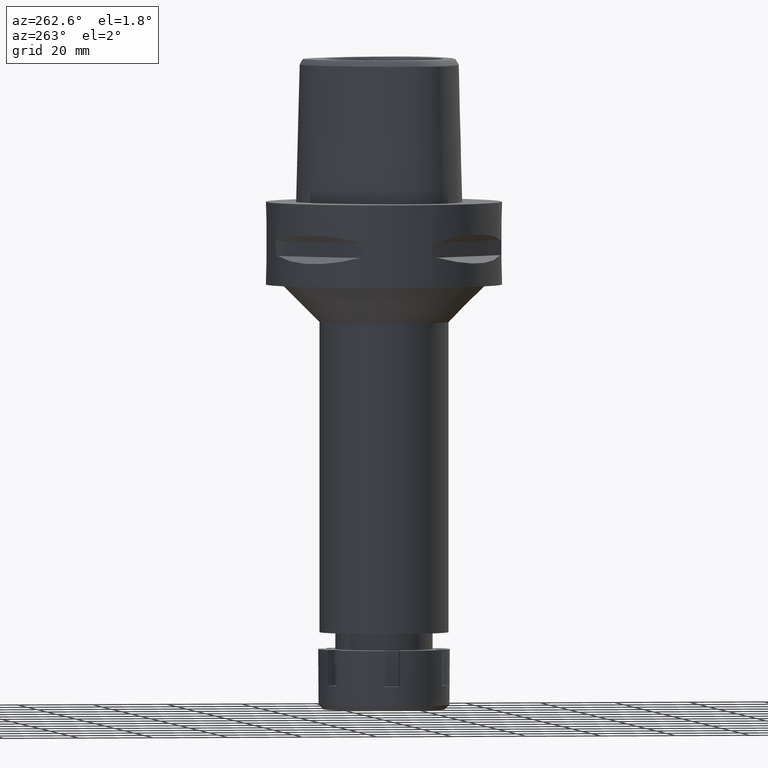
[diagram: clean part render]
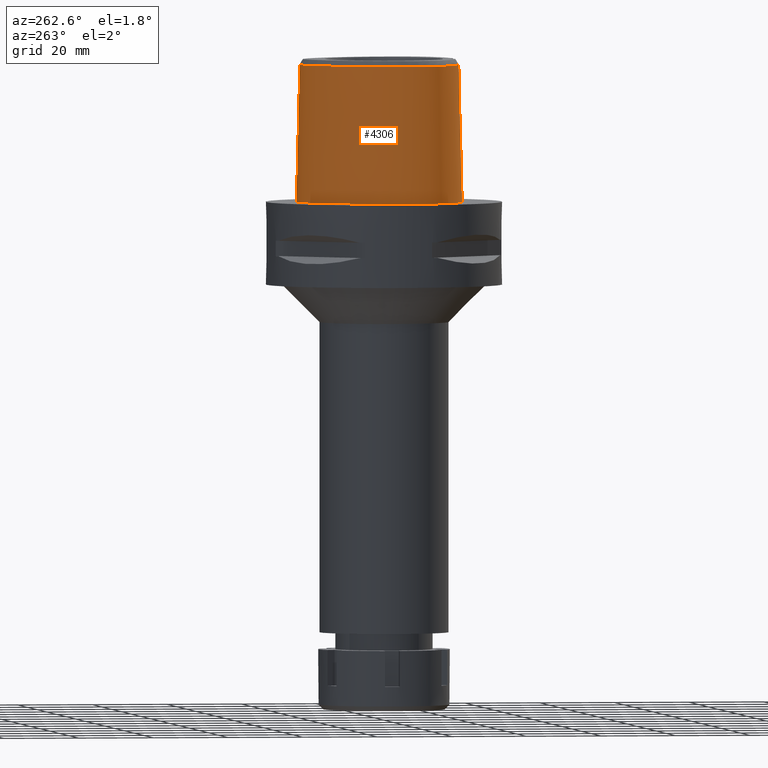
[diagram: same view with one face highlighted and labeled with its STEP entity id]
A machine part, auxiliary view. The second image highlights one B-rep face of the part: STEP entity #4306.
In plain terms, the highlighted face is a freeform B-spline surface patch.
Its self-contained STEP definition (entity closure, byte-faithful):
#16 = CARTESIAN_POINT ( 'NONE',  ( -13.69241955236999964, 15.03666371521000045, 37.25233127712999703 ) ) ;
#30 = CARTESIAN_POINT ( 'NONE',  ( -4.467522189395897847, -19.48130287050651432, 36.52186244848001451 ) ) ;
#43 = CARTESIAN_POINT ( 'NONE',  ( -21.36961487194999876, -0.3886498148208000769, 24.59140822868999976 ) ) ;
#69 = EDGE_CURVE ( 'NONE', #4087, #5473, #4562, .T. ) ;
#80 = CARTESIAN_POINT ( 'NONE',  ( -1.853278683527000092, -20.08023909468999690, 24.59140822868999976 ) ) ;
#106 = CARTESIAN_POINT ( 'NONE',  ( 0.6657744275854999838, -19.73734233401000182, 37.25233127712999703 ) ) ;
#115 = EDGE_CURVE ( 'NONE', #5072, #4087, #3562, .T. ) ;
#130 = CARTESIAN_POINT ( 'NONE',  ( -14.52531259835000021, -16.95413742138000046, 11.93048518026000160 ) ) ;
#151 = B_SPLINE_CURVE_WITH_KNOTS ( 'NONE', 3,
 ( #5113, #30, #927, #3508, #956, #899, #5225, #1735, #3537, #380, #865, #3905, #3120, #4288, #2697, #1278, #466, #3090, #2239, #1302, #4728, #2613, #1784 ),
 .UNSPECIFIED., .F., .F.,
 ( 4, 1, 1, 1, 1, 1, 1, 1, 1, 1, 1, 1, 1, 1, 1, 1, 1, 1, 1, 1, 4 ),
 ( 0.0000000000000000000, 0.03580973941722431081, 0.1234633994701847537, 0.1672902294965072090, 0.2111170595230400793, 0.2549438895495728663, 0.2768573045626815388, 0.2987707195758954049, 0.3206841345892144091, 0.3425975496024281641, 0.3864243796288558408, 0.4302512096552835175, 0.4740780396817111941, 0.5617316997346716301, 0.6493853597876321215, 0.7370390198404874749, 0.8246926798933427172, 0.8685195099198755875, 0.9123463399463137558, 0.9561731699727624711, 1.000000000000000000 ),
 .UNSPECIFIED. ) ;
#158 = CARTESIAN_POINT ( 'NONE',  ( -3.925407708632546289, -20.04099055260235573, 16.53138977182224423 ) ) ;
#159 = CARTESIAN_POINT ( 'NONE',  ( -6.232237555679000174, -19.68961163750000054, 24.59140822868999976 ) ) ;
#164 = CARTESIAN_POINT ( 'NONE',  ( -3.736722311398999796, -19.67781602443999844, 31.80000000000000071 ) ) ;
#165 = B_SPLINE_CURVE_WITH_KNOTS ( 'NONE', 3,
 ( #3456, #5556, #3827, #3394 ),
 .UNSPECIFIED., .F., .F.,
 ( 4, 4 ),
 ( 0.0000000000000000000, 1.000000000000000000 ),
 .UNSPECIFIED. ) ;
#180 = CARTESIAN_POINT ( 'NONE',  ( -1.222079501492472575, -20.16967619644332288, 19.36182732690642183 ) ) ;
#188 = CARTESIAN_POINT ( 'NONE',  ( -11.13012653171999844, -18.61140109487000061, 11.93048518026000160 ) ) ;
#273 = CARTESIAN_POINT ( 'NONE',  ( -1.638635025842260395, -20.34200884320524594, 11.79610711465529072 ) ) ;
#302 = CARTESIAN_POINT ( 'NONE',  ( -3.408875187705125320, -20.17633333109277416, 13.31312751153840246 ) ) ;
#369 = CARTESIAN_POINT ( 'NONE',  ( -19.86834402391000154, 4.339653564286999554, 37.25233127712999703 ) ) ;
#370 = CARTESIAN_POINT ( 'NONE',  ( 4.563152410477000099E-11, 23.47499999999000053, 5.514107688971999147E-14 ) ) ;
#373 = DIRECTION ( 'NONE',  ( 1.720262925317959518E-12, 0.02499051290962944413, -0.9996876883629776112 ) ) ;
#380 = CARTESIAN_POINT ( 'NONE',  ( -20.09619618741428937, -10.23243843868634073, 36.52186244848001451 ) ) ;
#393 = CARTESIAN_POINT ( 'NONE',  ( 0.7042335231399000639, 23.15549812920000150, 11.93048518026000160 ) ) ;
#423 = CARTESIAN_POINT ( 'NONE',  ( -22.07548129579999951, -6.850245536158000803, -0.7304378681790000272 ) ) ;
#426 = CARTESIAN_POINT ( 'NONE',  ( -7.554098525921001644E-12, -20.67499999999999716, 5.806466418789999109E-14 ) ) ;
#443 = VECTOR ( 'NONE', #4189, 1000.000000000000114 ) ;
#453 = CARTESIAN_POINT ( 'NONE',  ( -21.13154856164000250, -6.714587030900999842, 37.25233127712999703 ) ) ;
#458 = EDGE_CURVE ( 'NONE', #1893, #5228, #4746, .T. ) ;
#466 = CARTESIAN_POINT ( 'NONE',  ( -13.70645028111648855, 15.04851272300692777, 36.52186244848001451 ) ) ;
#477 = CARTESIAN_POINT ( 'NONE',  ( -17.25769828266000161, 9.963736400456999931, 37.25233127712999703 ) ) ;
#489 = ORIENTED_EDGE ( 'NONE', *, *, #1690, .T. ) ;
#511 = CARTESIAN_POINT ( 'NONE',  ( -6.175998544751999830, -19.37631762907999899, 37.25233127712999703 ) ) ;
#540 = CARTESIAN_POINT ( 'NONE',  ( -4.048193638326268662, -20.04945813672259902, 15.62509932612175056 ) ) ;
#573 = CARTESIAN_POINT ( 'NONE',  ( -3.637738201363999835, -19.56971413236999879, 36.52186244848000030 ) ) ;
#593 = CARTESIAN_POINT ( 'NONE',  ( -18.58171406931000291, -14.18198046875999907, -0.7304378681790000272 ) ) ;
#616 = CARTESIAN_POINT ( 'NONE',  ( -2.852856104024934059, -20.09931387729061214, 18.37467926461877354 ) ) ;
#623 = CARTESIAN_POINT ( 'NONE',  ( -3.952964639633003596, -20.08622609015964144, 14.60890045225522726 ) ) ;
#624 = CARTESIAN_POINT ( 'NONE',  ( -16.77374378713999903, -15.44292467628999965, 11.93048518026000160 ) ) ;
#644 = CARTESIAN_POINT ( 'NONE',  ( -1.543048130380533900, -20.15993798682081817, 19.24453660913605546 ) ) ;
#652 = CARTESIAN_POINT ( 'NONE',  ( -2.421503357396272094, -20.28648737493427134, 12.24279215501540108 ) ) ;
#676 = CARTESIAN_POINT ( 'NONE',  ( -9.433993878921999819E-13, -20.38876923348000147, 11.44999999999999929 ) ) ;
#730 = CARTESIAN_POINT ( 'NONE',  ( -3.258446753586495603, -20.07522384658319581, 17.91983021284174882 ) ) ;
#739 = CARTESIAN_POINT ( 'NONE',  ( -3.698122373791105311, -20.13343971464007609, 13.84482020407636149 ) ) ;
#762 = CARTESIAN_POINT ( 'NONE',  ( -3.377353639916971240, -20.18061854612786021, 13.26476903757087200 ) ) ;
#771 = CARTESIAN_POINT ( 'NONE',  ( 4.563152410477000099E-11, 23.47499999999000053, 5.514107688971999147E-14 ) ) ;
#802 = CARTESIAN_POINT ( 'NONE',  ( -22.05732873771768965, -6.847636717958458519, 2.214068054329915158E-07 ) ) ;
#827 = CARTESIAN_POINT ( 'NONE',  ( -19.54161153936999895, -11.28235468087999926, 37.25233127712999703 ) ) ;
#852 = CARTESIAN_POINT ( 'NONE',  ( -7.420053100516999400, 21.05635738923000133, 11.93048518026000160 ) ) ;
#865 = CARTESIAN_POINT ( 'NONE',  ( -20.67704215115513122, -8.734985316449344950, 36.52186244848001451 ) ) ;
#883 = CARTESIAN_POINT ( 'NONE',  ( -20.46725037703999917, 4.555493625163999916, 11.93048518026000160 ) ) ;
#899 = CARTESIAN_POINT ( 'NONE',  ( -16.39211280192208520, -14.95758113319049976, 36.52186244848001451 ) ) ;
#912 = CARTESIAN_POINT ( 'NONE',  ( 0.4696382016542000049, 23.16972797940999840, 11.93048518026000160 ) ) ;
#914 = CARTESIAN_POINT ( 'NONE',  ( -14.67337964144484275, -17.21410155768000649, 2.214068054329915158E-07 ) ) ;
#927 = CARTESIAN_POINT ( 'NONE',  ( -7.300578999877464170, -19.07170748892091083, 36.52186244848001451 ) ) ;
#956 = CARTESIAN_POINT ( 'NONE',  ( -14.22011356156199646, -16.41829364186129325, 36.52186244848001451 ) ) ;
#970 = CARTESIAN_POINT ( 'NONE',  ( -4.001055636211794386, -20.04208398455365625, 16.14154222857164811 ) ) ;
#973 = CARTESIAN_POINT ( 'NONE',  ( -6.288476566606999718, -20.00290564591999853, 11.93048518026000160 ) ) ;
#987 = VERTEX_POINT ( 'NONE', #5398 ) ;
#1005 = CARTESIAN_POINT ( 'NONE',  ( -4.050018014422889223, -20.05167593067615073, 15.52805627100565999 ) ) ;
#1032 = CARTESIAN_POINT ( 'NONE',  ( -6.344715577535001039, -20.31619965434000008, -0.7304378681790000272 ) ) ;
#1048 = CARTESIAN_POINT ( 'NONE',  ( -2.187955111047391821, -20.13397228737175482, 18.90818030784005188 ) ) ;
#1056 = CARTESIAN_POINT ( 'NONE',  ( 0.4439216874838000648, -19.74161820898000386, 37.25233127712999703 ) ) ;
#1077 = CARTESIAN_POINT ( 'NONE',  ( -0.5036866637163958105, -20.18406862059044826, 19.52728785670091227 ) ) ;
#1086 = CARTESIAN_POINT ( 'NONE',  ( -3.755562140673117444, -20.12374194796142390, 13.98397501487588102 ) ) ;
#1106 = CARTESIAN_POINT ( 'NONE',  ( -2.236225399043196838, -20.13170464962383122, 18.87669531694533731 ) ) ;
#1114 = CARTESIAN_POINT ( 'NONE',  ( -0.5047993661891336803, -20.38876923348000147, 11.44999999999999929 ) ) ;
#1121 = FACE_OUTER_BOUND ( 'NONE', #2950, .T. ) ;
#1125 = CARTESIAN_POINT ( 'NONE',  ( -3.732557508995409723, -20.04859144260191073, 17.07180291399404837 ) ) ;
#1133 = CARTESIAN_POINT ( 'NONE',  ( -9.433993878921999819E-13, -20.38876923348000147, 11.44999999999999929 ) ) ;
#1165 = CARTESIAN_POINT ( 'NONE',  ( -1.025211814377291475, -20.17465818941732891, 19.42048404905546022 ) ) ;
#1195 = CARTESIAN_POINT ( 'NONE',  ( -3.704467467891559451, -20.04996865237281511, 17.13733399074462582 ) ) ;
#1201 = CARTESIAN_POINT ( 'NONE',  ( -2.086814383356662805, -20.31269213283750830, 12.02647857452362778 ) ) ;
#1239 = CARTESIAN_POINT ( 'NONE',  ( -20.74942740356179272, 4.657187498112564938, 2.214068054329915158E-07 ) ) ;
#1265 = CARTESIAN_POINT ( 'NONE',  ( -20.09084467927000262, -11.59945458324999912, 11.93048518026000160 ) ) ;
#1278 = CARTESIAN_POINT ( 'NONE',  ( -17.27359245833693535, 9.972912913898799303, 36.52186244848001451 ) ) ;
#1290 = CARTESIAN_POINT ( 'NONE',  ( -0.5657070177733999339, 22.56734879520000092, 37.25233127712999703 ) ) ;
#1302 = CARTESIAN_POINT ( 'NONE',  ( -4.757642277158504740, 21.67478330407244869, 36.52186244848001451 ) ) ;
#1313 = CARTESIAN_POINT ( 'NONE',  ( -4.987110641135000577, 22.24795273996000233, 11.93048518026000160 ) ) ;
#1343 = CARTESIAN_POINT ( 'NONE',  ( -22.26285557011000193, -4.100361500021000083, -0.7304378681790000272 ) ) ;
#1372 = CARTESIAN_POINT ( 'NONE',  ( -0.5821289161631999498, 22.88453074813000043, 24.59140822868999976 ) ) ;
#1375 = CARTESIAN_POINT ( 'NONE',  ( -2.113823672736048209, -20.67499999446930659, 2.214068054329915158E-07 ) ) ;
#1389 = VERTEX_POINT ( 'NONE', #5129 ) ;
#1433 = CARTESIAN_POINT ( 'NONE',  ( 0.4560943670709999842, -20.69106768951000319, -0.7304378681790000272 ) ) ;
#1460 = EDGE_CURVE ( 'NONE', #987, #5134, #2550, .T. ) ;
#1465 = CARTESIAN_POINT ( 'NONE',  ( -18.12052891589999959, -13.74516015592999985, 24.59140822868999976 ) ) ;
#1489 = CARTESIAN_POINT ( 'NONE',  ( -10.91263698685999906, -18.01320775540999719, 37.25233127712999703 ) ) ;
#1502 = ORIENTED_EDGE ( 'NONE', *, *, #115, .F. ) ;
#1544 = CARTESIAN_POINT ( 'NONE',  ( -3.438474044886168812, -20.17226853620313776, 13.35950353148015957 ) ) ;
#1566 = CARTESIAN_POINT ( 'NONE',  ( -3.474550157063373668, -20.06258684786147839, 17.58509941784221198 ) ) ;
#1592 = CARTESIAN_POINT ( 'NONE',  ( -1.435263460290661985, -20.16346600381252685, 19.28743623777367588 ) ) ;
#1598 = CARTESIAN_POINT ( 'NONE',  ( -3.830499027157552749, -20.11062698623148393, 14.18153512544096628 ) ) ;
#1627 = CARTESIAN_POINT ( 'NONE',  ( -7.554098525921001644E-12, -20.67499999999999716, 5.806466418789999109E-14 ) ) ;
#1629 = CARTESIAN_POINT ( 'NONE',  ( -2.904838724128950833, -20.23782704190354664, 12.67778573503163386 ) ) ;
#1667 = CARTESIAN_POINT ( 'NONE',  ( -10.74572890701135108, 19.17433593323718100, 2.214068054329915158E-07 ) ) ;
#1689 = CARTESIAN_POINT ( 'NONE',  ( -2.503210890370000108, 22.99958932038000015, 11.93048518026000160 ) ) ;
#1690 = EDGE_CURVE ( 'NONE', #1389, #5228, #2546, .T. ) ;
#1719 = CARTESIAN_POINT ( 'NONE',  ( -20.36546124922000089, -11.75800453443999949, -0.7304378681790000272 ) ) ;
#1735 = CARTESIAN_POINT ( 'NONE',  ( -18.90964971338520684, -12.28759719904428849, 36.52186244848001451 ) ) ;
#1746 = CARTESIAN_POINT ( 'NONE',  ( -20.94844326296999881, -10.61175397190999981, -0.7304378681790000272 ) ) ;
#1748 = CARTESIAN_POINT ( 'NONE',  ( -11.23259756537737530, -18.89324218226976626, 2.214068054329915158E-07 ) ) ;
#1771 = CARTESIAN_POINT ( 'NONE',  ( -0.6149727129425999195, 23.51889465401000123, -0.7304378681790000272 ) ) ;
#1784 = CARTESIAN_POINT ( 'NONE',  ( -1.721531712733000315E-11, 22.56201468012000078, 36.52186680743999858 ) ) ;
#1798 = ORIENTED_EDGE ( 'NONE', *, *, #1460, .T. ) ;
#1802 = CARTESIAN_POINT ( 'NONE',  ( -4.868968364406999427, 21.95285523312999842, 24.59140822868999976 ) ) ;
#1860 = CARTESIAN_POINT ( 'NONE',  ( -4.044848056823933113, -20.04744994059100094, 15.72117637690397274 ) ) ;
#1888 = CARTESIAN_POINT ( 'NONE',  ( -4.049663826248574239, -20.05088590020231010, 15.56119206774690866 ) ) ;
#1890 = CARTESIAN_POINT ( 'NONE',  ( -18.35112149260999814, -13.96357031234999901, 11.93048518026000160 ) ) ;
#1893 = VERTEX_POINT ( 'NONE', #4098 ) ;
#1919 = CARTESIAN_POINT ( 'NONE',  ( -1.836486879049999965, -19.76356434012000207, 37.25233127712999703 ) ) ;
#1934 = CARTESIAN_POINT ( 'NONE',  ( -3.623054736483409144, -20.05423874947321039, 17.31100359226989127 ) ) ;
#1958 = CARTESIAN_POINT ( 'NONE',  ( -0.8941136475711287668, -20.17742596329177474, 19.45229334933670273 ) ) ;
#1990 = CARTESIAN_POINT ( 'NONE',  ( -2.141634863655994980, -20.13611892945455750, 18.93776449056860400 ) ) ;
#1998 = CARTESIAN_POINT ( 'NONE',  ( -3.520475118944292436, -20.16064927175152732, 13.49656734865233076 ) ) ;
#2008 = CARTESIAN_POINT ( 'NONE',  ( -2.564517725819225991, 23.29328124455137683, 2.214068054329915158E-07 ) ) ;
#2023 = CARTESIAN_POINT ( 'NONE',  ( -3.788010122577050165, -20.11815763408465330, 14.06624340820799546 ) ) ;
#2042 = CARTESIAN_POINT ( 'NONE',  ( -3.081149392581266078, -20.08583124627751459, 18.14629112889928919 ) ) ;
#2048 = CARTESIAN_POINT ( 'NONE',  ( -3.294464282139363043, -20.19175818983861959, 13.14063372506666383 ) ) ;
#2081 = CARTESIAN_POINT ( 'NONE',  ( -1.678454493255254754, -20.33967188086239020, 11.81405957882813418 ) ) ;
#2117 = CARTESIAN_POINT ( 'NONE',  ( -21.31039800877000090, -4.105938498918999535, 37.25233127712999703 ) ) ;
#2138 = CARTESIAN_POINT ( 'NONE',  ( -20.96392231213000201, -8.820258258345001323, 24.59140822868999976 ) ) ;
#2170 = CARTESIAN_POINT ( 'NONE',  ( -2.568271206748000246, 23.31126238855000210, -0.7304378681790000272 ) ) ;
#2196 = CARTESIAN_POINT ( 'NONE',  ( -2.438150573991999970, 22.68791625221000174, 24.59140822868999976 ) ) ;
#2198 = CARTESIAN_POINT ( 'NONE',  ( -6.341471018228679313, -20.29812499452939889, 2.214068054329915158E-07 ) ) ;
#2223 = CARTESIAN_POINT ( 'NONE',  ( -7.580410842544999639, 21.33037926699000053, -0.7304378681790000272 ) ) ;
#2225 = CARTESIAN_POINT ( 'NONE',  ( -19.64947365415650538, -12.82525390299093537, 2.214068054329915158E-07 ) ) ;
#2239 = CARTESIAN_POINT ( 'NONE',  ( -7.108589416785774162, 20.52412325828677453, 36.52186244848001451 ) ) ;
#2257 = CARTESIAN_POINT ( 'NONE',  ( -19.40779763165000205, -12.64961923301000013, 11.93048518026000160 ) ) ;
#2259 = CARTESIAN_POINT ( 'NONE',  ( -18.56841064739098712, -14.16937987899383344, 2.214068054329915158E-07 ) ) ;
#2323 = CARTESIAN_POINT ( 'NONE',  ( -3.736722311398999796, -19.67781602443999844, 31.80000000000000071 ) ) ;
#2337 = CARTESIAN_POINT ( 'NONE',  ( -4.019649019913690502, -20.04316019033999297, 16.01163126942445913 ) ) ;
#2342 = CARTESIAN_POINT ( 'NONE',  ( -19.15132511320999953, -12.46323141649999933, 24.59140822868999976 ) ) ;
#2362 = CARTESIAN_POINT ( 'NONE',  ( -3.649474620161942795, -20.05281468735705275, 17.25706831816536990 ) ) ;
#2371 = CARTESIAN_POINT ( 'NONE',  ( -3.921269265871360155, -20.09311890564809389, 14.47775228273900439 ) ) ;
#2373 = CARTESIAN_POINT ( 'NONE',  ( -11.23887130414999902, -18.91049776459999876, -0.7304378681790000272 ) ) ;
#2388 = ORIENTED_EDGE ( 'NONE', *, *, #69, .F. ) ;
#2413 = CARTESIAN_POINT ( 'NONE',  ( -2.467128207654242900, -20.12044499745017845, 18.71456023906639032 ) ) ;
#2420 = CARTESIAN_POINT ( 'NONE',  ( -2.875757950341305769, -20.24102512592877900, 12.64823125461339437 ) ) ;
#2474 = CARTESIAN_POINT ( 'NONE',  ( -3.538328569009117963, -20.05892019842419671, 17.47427695038242490 ) ) ;
#2480 = CARTESIAN_POINT ( 'NONE',  ( -3.553766164803828786, -20.15576042543258239, 13.55638603583300039 ) ) ;
#2504 = CARTESIAN_POINT ( 'NONE',  ( -3.646271025383652997, -20.14180172674314662, 13.73229968810163371 ) ) ;
#2545 = CARTESIAN_POINT ( 'NONE',  ( -20.16779720046999813, 4.447573594725000135, 24.59140822868999976 ) ) ;
#2546 = B_SPLINE_CURVE_WITH_KNOTS ( 'NONE', 3,
 ( #3675, #4452, #3649, #2323 ),
 .UNSPECIFIED., .F., .F.,
 ( 4, 4 ),
 ( 0.0000000000000000000, 1.000000000000000000 ),
 .UNSPECIFIED. ) ;
#2547 = CARTESIAN_POINT ( 'NONE',  ( -21.55524825476815209, -8.996025389043166953, 2.214068054329915158E-07 ) ) ;
#2550 = LINE ( 'NONE', #4255, #3895 ) ;
#2573 = CARTESIAN_POINT ( 'NONE',  ( -21.68301094627999959, -0.3332744151111000086, 11.93048518026000160 ) ) ;
#2596 = CARTESIAN_POINT ( 'NONE',  ( -10.55288401062999881, 18.94467581786999943, 11.93048518026000160 ) ) ;
#2600 = CARTESIAN_POINT ( 'NONE',  ( -3.848403410399269919, -20.04310851184510156, 16.79149714040343966 ) ) ;
#2613 = CARTESIAN_POINT ( 'NONE',  ( -0.7901461696974553250, 22.56201478746714528, 36.52186244848001451 ) ) ;
#2626 = CARTESIAN_POINT ( 'NONE',  ( -21.76083705108000288, -6.805026034406000512, 11.93048518026000160 ) ) ;
#2649 = CARTESIAN_POINT ( 'NONE',  ( -20.76670355359999931, 4.663413655601999608, -0.7304378681790000272 ) ) ;
#2697 = CARTESIAN_POINT ( 'NONE',  ( -19.88562090098132984, 4.345879983792142909, 36.52186244848001451 ) ) ;
#2760 = CARTESIAN_POINT ( 'NONE',  ( -1.886862292481999992, -20.71358860384000167, -0.7304378681790000272 ) ) ;
#2789 = CARTESIAN_POINT ( 'NONE',  ( -17.88993633919999837, -13.52674999951999979, 37.25233127712999703 ) ) ;
#2809 = CARTESIAN_POINT ( 'NONE',  ( -2.218923952806688416, -20.13252298611815405, 18.88809933006218955 ) ) ;
#2820 = CARTESIAN_POINT ( 'NONE',  ( -3.024127618930228856, -20.22444760030272093, 12.80466032897667716 ) ) ;
#2849 = CARTESIAN_POINT ( 'NONE',  ( -2.870809693610398394, -20.24156730632853751, 12.64324605247006694 ) ) ;
#2886 = CARTESIAN_POINT ( 'NONE',  ( -0.8548392419114434482, 23.47499999446841912, 2.214068054329915158E-07 ) ) ;
#2896 = CARTESIAN_POINT ( 'NONE',  ( -2.781497320433751863, -20.10345565782015953, 18.44409576488591895 ) ) ;
#2916 = CARTESIAN_POINT ( 'NONE',  ( -7.571159431546836238, 21.31457030771191796, 2.214068054329915158E-07 ) ) ;
#2928 = CARTESIAN_POINT ( 'NONE',  ( -1.975954942200878417, -20.32065689222469729, 11.96260358356314768 ) ) ;
#2950 = EDGE_LOOP ( 'NONE', ( #2388, #1502, #5470, #489, #3800, #5168, #1798, #5100 ) ) ;
#2964 = CARTESIAN_POINT ( 'NONE',  ( -22.24453907299377065, -4.100468750032335130, 2.214068054329915158E-07 ) ) ;
#2993 = CARTESIAN_POINT ( 'NONE',  ( -19.81622810932000078, -11.44090463206999964, 24.59140822868999976 ) ) ;
#3004 = EDGE_CURVE ( 'NONE', #1893, #987, #151, .T. ) ;
#3020 = CARTESIAN_POINT ( 'NONE',  ( -13.93560854278999983, 15.24203781199999952, 24.59140822868999976 ) ) ;
#3046 = CARTESIAN_POINT ( 'NONE',  ( -10.34823228004999862, 18.70095487458999983, 24.59140822868999976 ) ) ;
#3073 = CARTESIAN_POINT ( 'NONE',  ( -2.373090257614999921, 22.37624318403999979, 37.25233127712999703 ) ) ;
#3090 = CARTESIAN_POINT ( 'NONE',  ( -10.15538788052682762, 18.47129535094536834, 36.52186244848001451 ) ) ;
#3105 = CARTESIAN_POINT ( 'NONE',  ( -5.105252917864000040, 22.54305024678999914, -0.7304378681790000272 ) ) ;
#3120 = CARTESIAN_POINT ( 'NONE',  ( -21.32871527670033274, -4.105831244394256174, 36.52186244848001451 ) ) ;
#3165 = CARTESIAN_POINT ( 'NONE',  ( 0.6718639802060999422, -20.05378874085999996, 24.59140822868999976 ) ) ;
#3193 = CARTESIAN_POINT ( 'NONE',  ( -16.38077673336000117, -14.94316435914999985, 37.25233127712999703 ) ) ;
#3208 = CARTESIAN_POINT ( 'NONE',  ( -2.696415149898506503, -20.10825975497923324, 18.52316981035199106 ) ) ;
#3215 = CARTESIAN_POINT ( 'NONE',  ( -4.049848995936168095, -20.05861656952082939, 15.25314035233473753 ) ) ;
#3217 = CARTESIAN_POINT ( 'NONE',  ( -16.57726026025000365, -15.19304451772000064, 24.59140822868999976 ) ) ;
#3231 = CARTESIAN_POINT ( 'NONE',  ( -1.768917262159672710, -20.15190475906431544, 19.14568281053833942 ) ) ;
#3242 = CARTESIAN_POINT ( 'NONE',  ( -1.554881956805381105, -20.34669101430224813, 11.76035872671696580 ) ) ;
#3270 = CARTESIAN_POINT ( 'NONE',  ( -1.572984596533334667, -20.34569619827904674, 11.76794029727457236 ) ) ;
#3311 = CARTESIAN_POINT ( 'NONE',  ( -1.656252726920341534, -20.15609978928733170, 19.19765142506812694 ) ) ;
#3344 = CARTESIAN_POINT ( 'NONE',  ( -2.887412005235022949, -20.23974548682598495, 12.66003157092551668 ) ) ;
#3381 = CARTESIAN_POINT ( 'NONE',  ( -14.40795638533398559, 15.64093749640449715, 2.214068054329915158E-07 ) ) ;
#3394 = CARTESIAN_POINT ( 'NONE',  ( 0.0000000000000000000, -20.18628283968999781, 19.55000000000000071 ) ) ;
#3409 = CARTESIAN_POINT ( 'NONE',  ( -20.36913757981999851, -10.35391836248999908, 24.59140822868999976 ) ) ;
#3439 = CARTESIAN_POINT ( 'NONE',  ( -21.62788386255000006, -4.104079499285999688, 24.59140822868999976 ) ) ;
#3451 = CARTESIAN_POINT ( 'NONE',  ( -3.724287987559548707, -20.04899117660404073, 17.09139312267754462 ) ) ;
#3456 = CARTESIAN_POINT ( 'NONE',  ( 2.041042029990999821E-08, -19.88004246002000031, 31.80000004972000127 ) ) ;
#3464 = CARTESIAN_POINT ( 'NONE',  ( -20.65879042140000266, -10.48283616719999856, 11.93048518026000160 ) ) ;
#3466 = CARTESIAN_POINT ( 'NONE',  ( -20.34961798076670902, -11.74885741909873005, 2.214068054329915158E-07 ) ) ;
#3489 = CARTESIAN_POINT ( 'NONE',  ( -17.53318565086999925, 10.12278922513999824, 24.59140822868999976 ) ) ;
#3508 = CARTESIAN_POINT ( 'NONE',  ( -10.91891098965069773, -18.03046406390780376, 36.52186244848001451 ) ) ;
#3523 = CARTESIAN_POINT ( 'NONE',  ( -21.94536971633000277, -4.102220499653999930, 11.93048518026000160 ) ) ;
#3537 = CARTESIAN_POINT ( 'NONE',  ( -19.55745547455638089, -11.29150218115980131, 36.52186244848001451 ) ) ;
#3562 = B_SPLINE_CURVE_WITH_KNOTS ( 'NONE', 3,
 ( #4076, #5335, #1077, #1958, #1165, #180, #3680, #1592, #4591, #3741, #5421, #644, #3311, #3231, #4946, #3716, #4997, #1990, #1048, #2809, #1106, #4484, #2413, #4510, #3208, #2896, #5396, #4132, #616, #4889, #2042, #730, #1566, #2474, #1934, #2362, #4914, #1195, #3451, #1125, #5515, #4439, #2600, #158, #970, #2337, #5262, #1860, #540, #1888, #1005, #3215, #4896, #623, #2371, #4084, #1598, #2023, #4953, #1086, #4599, #5005, #739, #2504, #2480, #1998, #4516, #1544, #302, #4543, #762, #2048, #4168, #3769, #2820, #5454, #1629, #3344, #2420, #2849, #5033, #652, #1201, #2928, #4624, #4111, #2081, #273, #3802, #3270, #5375, #3242, #4925, #1114, #676 ),
 .UNSPECIFIED., .F., .F.,
 ( 4, 2, 2, 1, 1, 1, 2, 2, 2, 2, 1, 2, 2, 2, 1, 1, 1, 2, 2, 2, 2, 2, 1, 1, 2, 2, 2, 2, 1, 2, 2, 2, 2, 1, 1, 1, 2, 2, 2, 2, 1, 2, 2, 2, 1, 1, 1, 2, 2, 2, 2, 2, 1, 1, 2, 2, 4 ),
 ( 0.0000000000000000000, 0.06249999999998973044, 0.09374999999998465117, 0.1093749999999822364, 0.1171874999999808625, 0.1210937499999801825, 0.1230468749999796829, 0.1249999999999791833, 0.1562499999999720224, 0.1718749999999684419, 0.1796874999999668043, 0.1835937499999660549, 0.1874999999999653055, 0.2187499999999589495, 0.2343749999999558131, 0.2421874999999542588, 0.2460937499999535372, 0.2480468749999534539, 0.2499999999999533429, 0.3124999999999434896, 0.3437499999999388822, 0.3593749999999369393, 0.3671874999999364397, 0.3710937499999366618, 0.3730468749999367728, 0.3749999999999368838, 0.4374999999999434341, 0.4687499999999462652, 0.4843749999999477085, 0.4921874999999484301, 0.4999999999999491518, 0.5624999999999558131, 0.5937499999999593658, 0.6093749999999613642, 0.6171874999999623634, 0.6210937499999628075, 0.6230468749999630296, 0.6249999999999632516, 0.6562499999999682476, 0.6718749999999705791, 0.6796874999999716893, 0.6835937499999722444, 0.6874999999999727995, 0.7187499999999756861, 0.7343749999999771294, 0.7421874999999777955, 0.7460937499999780176, 0.7480468749999781286, 0.7499999999999782396, 0.8124999999999827915, 0.8437499999999852340, 0.8593749999999864553, 0.8671874999999871214, 0.8710937499999874545, 0.8730468749999876765, 0.8749999999999878986, 1.000000000000000000 ),
 .UNSPECIFIED. ) ;
#3640 = CARTESIAN_POINT ( 'NONE',  ( 0.4520368072086000111, -20.37458452932999720, 11.93048518026000160 ) ) ;
#3649 = CARTESIAN_POINT ( 'NONE',  ( -2.503154198992477930, -19.81241979316119739, 31.80000012753028571 ) ) ;
#3665 = CARTESIAN_POINT ( 'NONE',  ( 0.6779535328267000116, -20.37023514772000254, 11.93048518026000160 ) ) ;
#3675 = CARTESIAN_POINT ( 'NONE',  ( 2.041042029990999821E-08, -19.88004246002000031, 31.80000004972000127 ) ) ;
#3680 = CARTESIAN_POINT ( 'NONE',  ( -1.320565687271252786, -20.16697761691574442, 19.32976498246145525 ) ) ;
#3716 = CARTESIAN_POINT ( 'NONE',  ( -2.004675599378036743, -20.14220382833444845, 19.01976680094072591 ) ) ;
#3733 = CARTESIAN_POINT ( 'NONE',  ( -21.97832647238913850, -0.2810937509684083291, 2.214068054329915158E-07 ) ) ;
#3741 = CARTESIAN_POINT ( 'NONE',  ( -1.517038990532323162, -20.16080850842839922, 19.25515252244234432 ) ) ;
#3769 = CARTESIAN_POINT ( 'NONE',  ( -3.089131642921038701, -20.21685897408075405, 12.88004451868244793 ) ) ;
#3800 = ORIENTED_EDGE ( 'NONE', *, *, #458, .F. ) ;
#3802 = CARTESIAN_POINT ( 'NONE',  ( -1.592612062467941847, -20.34460894491104455, 11.77623291199329181 ) ) ;
#3815 = CARTESIAN_POINT ( 'NONE',  ( 0.0000000000000000000, -20.18628283968999781, 19.55000000000000071 ) ) ;
#3827 = CARTESIAN_POINT ( 'NONE',  ( 6.840929253303065818E-09, -20.08420636276313331, 23.63333344114116485 ) ) ;
#3837 = CARTESIAN_POINT ( 'NONE',  ( -21.44619280635999914, -6.759806532653000133, 24.59140822868999976 ) ) ;
#3862 = CARTESIAN_POINT ( 'NONE',  ( -4.750826087677999965, 21.65775772629000073, 37.25233127712999703 ) ) ;
#3890 = CARTESIAN_POINT ( 'NONE',  ( -21.05621879761000059, -0.4440252145304999787, 37.25233127712999703 ) ) ;
#3895 = VECTOR ( 'NONE', #373, 999.9999999999998863 ) ;
#3905 = CARTESIAN_POINT ( 'NONE',  ( -21.14970188363735915, -6.717195958887573148, 36.52186244848001451 ) ) ;
#3913 = CARTESIAN_POINT ( 'NONE',  ( -10.75753574119999989, 19.18839676114999904, -0.7304378681790000272 ) ) ;
#3940 = CARTESIAN_POINT ( 'NONE',  ( 0.4441906931049999785, 22.53710756451000208, 37.25233127712999703 ) ) ;
#3971 = CARTESIAN_POINT ( 'NONE',  ( -3.736722311398999796, -19.67781602443999844, 31.80000000000000071 ) ) ;
#3976 = CARTESIAN_POINT ( 'NONE',  ( -14.68244497352999822, -17.23001773441000140, -0.7304378681790000272 ) ) ;
#4033 = CARTESIAN_POINT ( 'NONE',  ( -3.704239276368590961, -19.64128040965313460, 33.37395414949332917 ) ) ;
#4057 = CARTESIAN_POINT ( 'NONE',  ( -18.89485259477000056, -12.27684359999999941, 37.25233127712999703 ) ) ;
#4076 = CARTESIAN_POINT ( 'NONE',  ( 0.0000000000000000000, -20.18628283968999781, 19.55000000000000071 ) ) ;
#4084 = CARTESIAN_POINT ( 'NONE',  ( -3.862607746689350918, -20.10460055501470222, 14.28038032241867228 ) ) ;
#4085 = CARTESIAN_POINT ( 'NONE',  ( 0.6840430854472999700, -20.68668155457999802, -0.7304378681790000272 ) ) ;
#4087 = VERTEX_POINT ( 'NONE', #4829 ) ;
#4098 = CARTESIAN_POINT ( 'NONE',  ( -3.637738201363999835, -19.56971413236999879, 36.52186244848000030 ) ) ;
#4111 = CARTESIAN_POINT ( 'NONE',  ( -1.758544761681626323, -20.33485355119283255, 11.85123508312857865 ) ) ;
#4132 = CARTESIAN_POINT ( 'NONE',  ( -2.841055161951133279, -20.10000556631501567, 18.38634273631047833 ) ) ;
#4168 = CARTESIAN_POINT ( 'NONE',  ( -3.215358272888235724, -20.20174660046940573, 13.03391498473859933 ) ) ;
#4178 = CARTESIAN_POINT ( 'NONE',  ( 0.7234356453974000178, 23.47140593139999964, -0.7304378681790000272 ) ) ;
#4189 = DIRECTION ( 'NONE',  ( -5.771733222490829935E-13, -0.02499051295389925070, -0.9996876883618708298 ) ) ;
#4252 = CARTESIAN_POINT ( 'NONE',  ( 0.4823619559287999903, 23.48603818684999922, -0.7304378681790000272 ) ) ;
#4255 = CARTESIAN_POINT ( 'NONE',  ( -1.721531712733000315E-11, 22.56201468012000078, 36.52186680743999858 ) ) ;
#4277 = CARTESIAN_POINT ( 'NONE',  ( -19.66427015009000101, -12.83600704951000004, -0.7304378681790000272 ) ) ;
#4288 = CARTESIAN_POINT ( 'NONE',  ( -21.07430010672550935, -0.4408303445192685577, 36.52186244848001451 ) ) ;
#4302 = CARTESIAN_POINT ( 'NONE',  ( 0.6658292786247000938, 22.52368252479999811, 37.25233127712999703 ) ) ;
#4306 = ADVANCED_FACE ( 'NONE', ( #1121 ), #4698, .T. ) ;
#4333 = CARTESIAN_POINT ( 'NONE',  ( -14.17879753322000091, 15.44741190878999859, 11.93048518026000160 ) ) ;
#4353 = CARTESIAN_POINT ( 'NONE',  ( -17.80867301907000311, 10.28184204981999983, 11.93048518026000160 ) ) ;
#4412 = CARTESIAN_POINT ( 'NONE',  ( -1.870070488004999865, -20.39691384926999973, 11.93048518026000160 ) ) ;
#4439 = CARTESIAN_POINT ( 'NONE',  ( -3.740129524201636357, -20.04822853724977705, 17.05370687140990427 ) ) ;
#4452 = CARTESIAN_POINT ( 'NONE',  ( -1.251533273949388070, -19.88005341379734503, 31.80000012753028571 ) ) ;
#4484 = CARTESIAN_POINT ( 'NONE',  ( -2.360389010909461405, -20.12578017861218171, 18.79373387522309713 ) ) ;
#4494 = CARTESIAN_POINT ( 'NONE',  ( -16.97022731402999796, -15.69280483487000133, -0.7304378681790000272 ) ) ;
#4510 = CARTESIAN_POINT ( 'NONE',  ( -2.621021505587192824, -20.11233874864635851, 18.58822781674975033 ) ) ;
#4516 = CARTESIAN_POINT ( 'NONE',  ( -3.466483550184903173, -20.16833646136365132, 13.40542637770943557 ) ) ;
#4543 = CARTESIAN_POINT ( 'NONE',  ( -3.388781880796565726, -20.17907268769699769, 13.28211842279016963 ) ) ;
#4562 = LINE ( 'NONE', #1133, #443 ) ;
#4584 = CARTESIAN_POINT ( 'NONE',  ( -18.06826688045033791, 10.43171874721780945, 2.214068054329915158E-07 ) ) ;
#4591 = CARTESIAN_POINT ( 'NONE',  ( -1.492522727687785933, -20.16161937968068329, 19.26502569008773236 ) ) ;
#4599 = CARTESIAN_POINT ( 'NONE',  ( -3.748882549353759419, -20.12487725615873302, 13.96753193210146549 ) ) ;
#4624 = CARTESIAN_POINT ( 'NONE',  ( -1.812541018722973130, -20.33144879143464934, 11.87771303033514947 ) ) ;
#4694 = CARTESIAN_POINT ( 'NONE',  ( -21.99640702061999775, -0.2778990154013999958, -0.7304378681790000272 ) ) ;
#4698 = B_SPLINE_SURFACE_WITH_KNOTS ( 'NONE', 3, 3, ( 
 ( #4178, #393, #5125, #4302 ),
 ( #4252, #912, #4715, #3940 ),
 ( #1771, #5150, #1372, #1290 ),
 ( #2170, #1689, #2196, #3073 ),
 ( #3105, #1313, #1802, #3862 ),
 ( #2223, #852, #5180, #5212 ),
 ( #3913, #2596, #3046, #4772 ),
 ( #4797, #4333, #3020, #16 ),
 ( #4742, #4353, #3489, #477 ),
 ( #2649, #883, #2545, #369 ),
 ( #4694, #2573, #43, #3890 ),
 ( #1343, #3523, #3439, #2117 ),
 ( #423, #2626, #3837, #453 ),
 ( #5539, #5565, #2138, #5511 ),
 ( #1746, #3464, #3409, #5098 ),
 ( #1719, #1265, #2993, #827 ),
 ( #4277, #2257, #2342, #4057 ),
 ( #593, #1890, #1465, #2789 ),
 ( #4494, #624, #3217, #3193 ),
 ( #3976, #130, #4897, #4873 ),
 ( #2373, #188, #5321, #1489 ),
 ( #1032, #973, #159, #511 ),
 ( #2760, #4412, #80, #1919 ),
 ( #1433, #3640, #4818, #1056 ),
 ( #4085, #3665, #3165, #106 ) ),
 .UNSPECIFIED., .F., .F., .F.,
 ( 4, 1, 1, 1, 1, 1, 1, 1, 1, 1, 1, 1, 1, 1, 1, 1, 1, 1, 1, 1, 1, 1, 4 ),
 ( 4, 4 ),
 ( -0.01173777939045999967, 0.0000000000000000000, 0.04166666666736999758, 0.08333333333399001175, 0.1250000000005999923, 0.1666666666673000119, 0.2500000000004999889, 0.3333333333337000215, 0.4166666666670000296, 0.5000000000002999823, 0.5416666666668999985, 0.5833333333335000148, 0.6250000000001000311, 0.6458333333333999837, 0.6666666666667999674, 0.6875000000001000311, 0.7083333333333000637, 0.7500000000000000000, 0.7916666666667000474, 0.8333333333332000326, 0.9166666666664999852, 1.000000000000000000, 1.008985696609000060 ),
 ( -3.571398256991000237E-09, 1.000000182141000060 ),
 .UNSPECIFIED. ) ;
#4715 = CARTESIAN_POINT ( 'NONE',  ( 0.4569144473796000194, 22.85341777196000024, 24.59140822868999976 ) ) ;
#4728 = CARTESIAN_POINT ( 'NONE',  ( -2.376843896516890098, 22.39422508473543516, 36.52186244848000740 ) ) ;
#4742 = CARTESIAN_POINT ( 'NONE',  ( -18.08416038727999720, 10.44089487449999964, -0.7304378681790000272 ) ) ;
#4746 = B_SPLINE_CURVE_WITH_KNOTS ( 'NONE', 3,
 ( #573, #5349, #4033, #164 ),
 .UNSPECIFIED., .F., .F.,
 ( 4, 4 ),
 ( 0.0000000000000000000, 1.000000000000000000 ),
 .UNSPECIFIED. ) ;
#4772 = CARTESIAN_POINT ( 'NONE',  ( -10.14358054947000021, 18.45723393131000023, 37.25233127712999703 ) ) ;
#4775 = CARTESIAN_POINT ( 'NONE',  ( -16.95889172250420174, -15.67838866750525462, 2.214068054329915158E-07 ) ) ;
#4797 = CARTESIAN_POINT ( 'NONE',  ( -14.42198652365000022, 15.65278600557999589, -0.7304378681790000272 ) ) ;
#4799 = CARTESIAN_POINT ( 'NONE',  ( -20.93173251704490667, -10.60431640399921882, 2.214068054329915158E-07 ) ) ;
#4818 = CARTESIAN_POINT ( 'NONE',  ( 0.4479792473461999824, -20.05810136915999919, 24.59140822868999976 ) ) ;
#4829 = CARTESIAN_POINT ( 'NONE',  ( -9.433993878921999819E-13, -20.38876923348000147, 11.44999999999999929 ) ) ;
#4873 = CARTESIAN_POINT ( 'NONE',  ( -14.21104784797999976, -16.40237679532999948, 37.25233127712999703 ) ) ;
#4889 = CARTESIAN_POINT ( 'NONE',  ( -2.857836109605274011, -20.09902107152586126, 18.36973246307367802 ) ) ;
#4896 = CARTESIAN_POINT ( 'NONE',  ( -4.027530768677417328, -20.06783249596208307, 14.99855479653707846 ) ) ;
#4897 = CARTESIAN_POINT ( 'NONE',  ( -14.36818022315999954, -16.67825710836000042, 24.59140822868999976 ) ) ;
#4914 = CARTESIAN_POINT ( 'NONE',  ( -3.686560471766090252, -20.05088322548402857, 17.17709135335211812 ) ) ;
#4925 = CARTESIAN_POINT ( 'NONE',  ( -1.035503055405978312, -20.37488775911208094, 11.54570873351903160 ) ) ;
#4946 = CARTESIAN_POINT ( 'NONE',  ( -1.944872162919951464, -20.14473830020723710, 19.05307826099487301 ) ) ;
#4953 = CARTESIAN_POINT ( 'NONE',  ( -3.765489374949921864, -20.12204791086962530, 14.00864527312732477 ) ) ;
#4997 = CARTESIAN_POINT ( 'NONE',  ( -2.095753548405625999, -20.13818364214462164, 18.96577014706425501 ) ) ;
#5005 = CARTESIAN_POINT ( 'NONE',  ( -3.744859968352741042, -20.12555785049271861, 13.95773689203802270 ) ) ;
#5033 = CARTESIAN_POINT ( 'NONE',  ( -2.647727988110749830, -20.26593689667658182, 12.42012271608913032 ) ) ;
#5072 = VERTEX_POINT ( 'NONE', #3815 ) ;
#5098 = CARTESIAN_POINT ( 'NONE',  ( -20.07948473825000235, -10.22500055778000139, 37.25233127712999703 ) ) ;
#5100 = ORIENTED_EDGE ( 'NONE', *, *, #5170, .T. ) ;
#5113 = CARTESIAN_POINT ( 'NONE',  ( -3.637738201363999835, -19.56971413236999879, 36.52186244848000030 ) ) ;
#5125 = CARTESIAN_POINT ( 'NONE',  ( 0.6850314008822999678, 22.83959032699999980, 24.59140822868999976 ) ) ;
#5129 = CARTESIAN_POINT ( 'NONE',  ( 2.041042029990999821E-08, -19.88004246002000031, 31.80000004972000127 ) ) ;
#5134 = VERTEX_POINT ( 'NONE', #370 ) ;
#5150 = CARTESIAN_POINT ( 'NONE',  ( -0.5985508145528999346, 23.20171270107000083, 11.93048518026000160 ) ) ;
#5168 = ORIENTED_EDGE ( 'NONE', *, *, #3004, .T. ) ;
#5170 = EDGE_CURVE ( 'NONE', #5134, #5473, #5538, .T. ) ;
#5180 = CARTESIAN_POINT ( 'NONE',  ( -7.259695358488000849, 20.78233551147000213, 24.59140822868999976 ) ) ;
#5212 = CARTESIAN_POINT ( 'NONE',  ( -7.099337616459999722, 20.50831363372000027, 37.25233127712999703 ) ) ;
#5225 = CARTESIAN_POINT ( 'NONE',  ( -17.90324032096761186, -13.53935111955743942, 36.52186244848001451 ) ) ;
#5228 = VERTEX_POINT ( 'NONE', #3971 ) ;
#5262 = CARTESIAN_POINT ( 'NONE',  ( -4.038031914720692228, -20.04584209172336529, 15.81781984752944581 ) ) ;
#5321 = CARTESIAN_POINT ( 'NONE',  ( -11.02138175928999964, -18.31230442514000245, 24.59140822868999976 ) ) ;
#5335 = CARTESIAN_POINT ( 'NONE',  ( -0.2473412322726143697, -20.18628283969000492, 19.55000000000000071 ) ) ;
#5349 = CARTESIAN_POINT ( 'NONE',  ( -3.671249123513567802, -19.60525173594972514, 34.94790829898666829 ) ) ;
#5375 = CARTESIAN_POINT ( 'NONE',  ( -1.559921522259176685, -20.34641501698339638, 11.76246137009518833 ) ) ;
#5396 = CARTESIAN_POINT ( 'NONE',  ( -2.823299992936004976, -20.10104229143708920, 18.40378355436401492 ) ) ;
#5398 = CARTESIAN_POINT ( 'NONE',  ( -1.721531712733000315E-11, 22.56201468012000078, 36.52186680743999858 ) ) ;
#5421 = CARTESIAN_POINT ( 'NONE',  ( -1.533377486154679836, -20.16026360294687336, 19.24851053760749409 ) ) ;
#5452 = EDGE_CURVE ( 'NONE', #1389, #5072, #165, .T. ) ;
#5454 = CARTESIAN_POINT ( 'NONE',  ( -2.945118222697385768, -20.23335776654019824, 12.71958560101069935 ) ) ;
#5470 = ORIENTED_EDGE ( 'NONE', *, *, #5452, .F. ) ;
#5473 = VERTEX_POINT ( 'NONE', #1627 ) ;
#5492 = CARTESIAN_POINT ( 'NONE',  ( -5.098437015217481161, 22.52602538546624089, 2.214068054329915158E-07 ) ) ;
#5511 = CARTESIAN_POINT ( 'NONE',  ( -20.65947726961000086, -8.729764289249999365, 37.25233127712999703 ) ) ;
#5515 = CARTESIAN_POINT ( 'NONE',  ( -3.738021026999629459, -20.04832921641926546, 17.05876513949563034 ) ) ;
#5538 = B_SPLINE_CURVE_WITH_KNOTS ( 'NONE', 3,
 ( #771, #2886, #2008, #5492, #2916, #1667, #3381, #4584, #1239, #3733, #2964, #802, #2547, #4799, #3466, #2225, #2259, #4775, #914, #1748, #2198, #1375, #426 ),
 .UNSPECIFIED., .F., .F.,
 ( 4, 1, 1, 1, 1, 1, 1, 1, 1, 1, 1, 1, 1, 1, 1, 1, 1, 1, 1, 1, 4 ),
 ( 0.0000000000000000000, 0.04166666666736999758, 0.08333333333399001175, 0.1250000000005999923, 0.1666666666673000119, 0.2500000000004999889, 0.3333333333337000215, 0.4166666666670000296, 0.5000000000002999823, 0.5416666666668999985, 0.5833333333335000148, 0.6250000000001000311, 0.6458333333333999837, 0.6666666666667999674, 0.6875000000001000311, 0.7083333333333000637, 0.7500000000000000000, 0.7916666666667000474, 0.8333333333332000326, 0.9166666666664999852, 1.000000000000000000 ),
 .UNSPECIFIED. ) ;
#5539 = CARTESIAN_POINT ( 'NONE',  ( -21.57281239715999988, -9.001246196534999910, -0.7304378681790000272 ) ) ;
#5556 = CARTESIAN_POINT ( 'NONE',  ( 6.820961290596032172E-09, -19.98212988583435390, 27.71666688228243203 ) ) ;
#5565 = CARTESIAN_POINT ( 'NONE',  ( -21.26836735464999961, -8.910752227439999729, 11.93048518026000160 ) ) ;